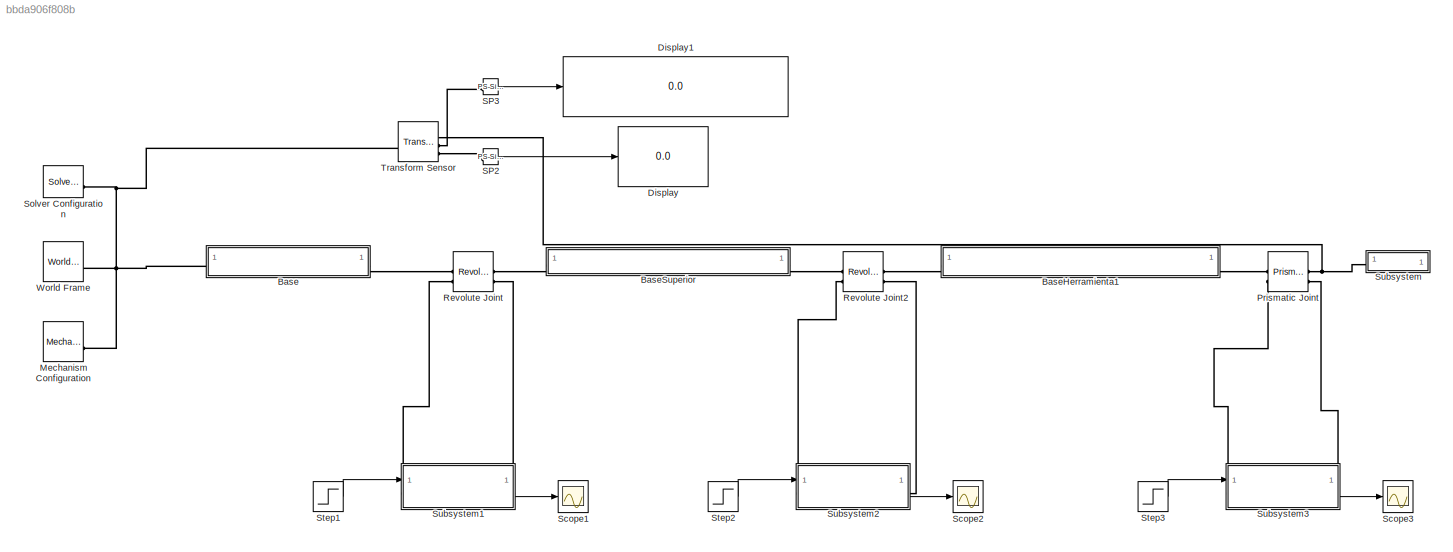
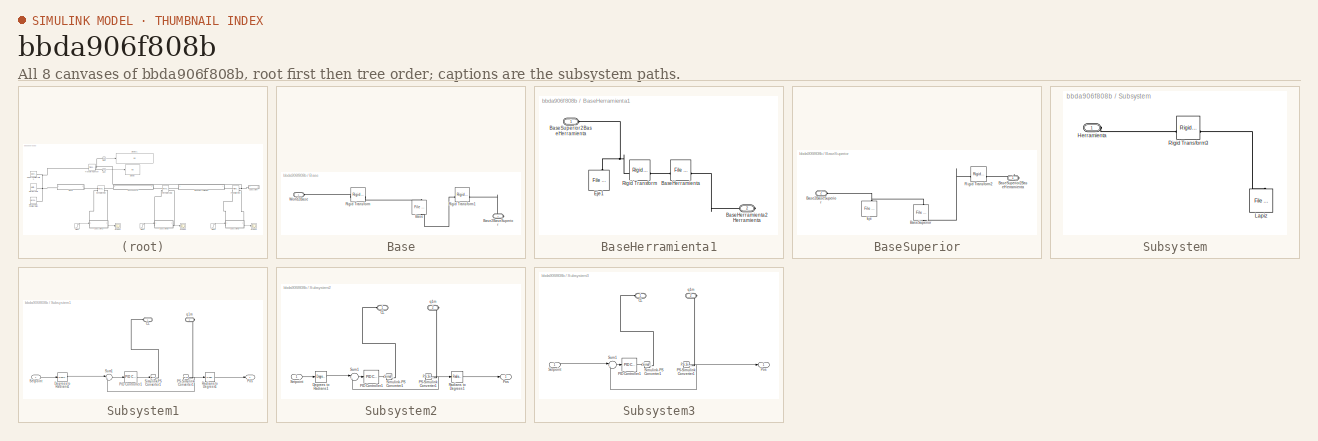
[diagram: thumbnail index - all 8 canvases of the model, root first then tree order]
MODEL slx_bbda906f808b
KIND model
CONFIG AbsTol = auto
CONFIG EnableMultiTasking = off
CONFIG FixedStep = auto
CONFIG MaxStep = auto
CONFIG MinStep = auto
CONFIG RelTol = 1e-3
CONFIG SampleTimeConstraint = Unconstrained
CONFIG SolverName = VariableStepAuto
CONFIG StartTime = 0.0
CONFIG StopTime = 15
BLOCK [SubSystem] Base
BLOCK [Reference] Base/Base  REF=sm_lib/Body Elements/File Solid
  NameLocation = left
  SourceBlock = sm_lib/Body Elements/File Solid
  SourceType = File Solid
BLOCK [PMIOPort] Base/Base2BaseSuperior
  Port = 2
  Side = Right
BLOCK [Reference] Base/Rigid Transform  REF=sm_lib/Frames and
Transforms/Rigid
Transform
  SourceBlock = sm_lib/Frames and\nTransforms/Rigid\nTransform
  SourceType = Rigid\nTransform
BLOCK [Reference] Base/Rigid Transform1  REF=sm_lib/Frames and
Transforms/Rigid
Transform
  SourceBlock = sm_lib/Frames and\nTransforms/Rigid\nTransform
  SourceType = Rigid\nTransform
BLOCK [PMIOPort] Base/World2Base
  Side = Left
BLOCK [SubSystem] BaseHerramienta1
BLOCK [Reference] BaseHerramienta1/BaseHerramienta  REF=sm_lib/Body Elements/File Solid
  SourceBlock = sm_lib/Body Elements/File Solid
  SourceType = File Solid
BLOCK [PMIOPort] BaseHerramienta1/BaseHerramienta2Herramienta
  Port = 2
  Side = Right
BLOCK [PMIOPort] BaseHerramienta1/BaseSuperior2BaseHerramienta
  Side = Left
BLOCK [Reference] BaseHerramienta1/Eje1  REF=sm_lib/Body Elements/File Solid
  NameLocation = left
  SourceBlock = sm_lib/Body Elements/File Solid
  SourceType = File Solid
BLOCK [Reference] BaseHerramienta1/Rigid Transform  REF=sm_lib/Frames and
Transforms/Rigid
Transform
  SourceBlock = sm_lib/Frames and\nTransforms/Rigid\nTransform
  SourceType = Rigid\nTransform
BLOCK [SubSystem] BaseSuperior
BLOCK [PMIOPort] BaseSuperior/Base2BaseSuperior
  Port = 2
  Side = Left
BLOCK [Reference] BaseSuperior/BaseSuperior  REF=sm_lib/Body Elements/File Solid
  NameLocation = left
  SourceBlock = sm_lib/Body Elements/File Solid
  SourceType = File Solid
BLOCK [PMIOPort] BaseSuperior/BaseSuperior2BaseHerramienta
  Side = Right
BLOCK [Reference] BaseSuperior/Eje  REF=sm_lib/Body Elements/File Solid
  NameLocation = left
  SourceBlock = sm_lib/Body Elements/File Solid
  SourceType = File Solid
BLOCK [Reference] BaseSuperior/Rigid Transform2  REF=sm_lib/Frames and
Transforms/Rigid
Transform
  SourceBlock = sm_lib/Frames and\nTransforms/Rigid\nTransform
  SourceType = Rigid\nTransform
BLOCK [Display] Display
  Decimation = 1
BLOCK [Display] Display1
  Decimation = 1
BLOCK [Reference] Mechanism Configuration  REF=sm_lib/Utilities/Mechanism
Configuration
  SourceBlock = sm_lib/Utilities/Mechanism\nConfiguration
  SourceType = Mechanism\nConfiguration
BLOCK [Reference] Prismatic Joint  REF=sm_lib/Joints/Prismatic
Joint
  SourceBlock = sm_lib/Joints/Prismatic\nJoint
  SourceType = Prismatic\nJoint
BLOCK [Reference] Revolute Joint  REF=sm_lib/Joints/Revolute Joint
  SourceBlock = sm_lib/Joints/Revolute Joint
  SourceType = Revolute Joint
BLOCK [Reference] Revolute Joint2  REF=sm_lib/Joints/Revolute Joint
  SourceBlock = sm_lib/Joints/Revolute Joint
  SourceType = Revolute Joint
BLOCK [Reference] SP2  REF=nesl_utility/PS-Simulink
Converter
  SourceBlock = nesl_utility/PS-Simulink\nConverter
  SourceType = PS-Simulink\nConverter
BLOCK [Reference] SP3  REF=nesl_utility/PS-Simulink
Converter
  SourceBlock = nesl_utility/PS-Simulink\nConverter
  SourceType = PS-Simulink\nConverter
BLOCK [Scope] Scope1
  ActiveDisplayYMaximum = 1
  ActiveDisplayYMinimum = -1
  DataLoggingVariableName = ScopeData1
  Floating = off
  GraphicalSettings = {"Style":{"BackgroundColor":[0.12941176470588237,0.12941176470588237,0.12941176470588237],"AxesColor":[0.07058823529411765,0.07058823529411765,0.07058823529411765],"LabelsColor":[0.8509803921568627,0.8509803921568627,0.8509803921568627],"PreserveColors":false,"Visible":[true],"LineStyle":["-"],"LineWidth":[1.5],"BarWidth":[0.9],"LineColor":["auto"],"LineFaceAlpha":[1],"LineEdgeAlpha":[1],"Marker":...<+2000ch>
  MultipleDisplayCache = [{"MaxYLimMag":1,"MaxYLimReal":1,"MinYLimMag":0,"MinYLimReal":-1,"PlotAsMagnitudePhase":false,"ShowGrid":true,"ShowLegend":false,"Title":"%<SignalLabel>","YLabel":""}]
  NumInputPorts = 1
  ScopeFrameLocation = window
  WasSavedAsWebScope = on
  WindowPosition = [1.000000,41.000000,1920.000000,963.000000,]
BLOCK [Scope] Scope2
  ActiveDisplayYMaximum = 1
  ActiveDisplayYMinimum = -1
  Floating = off
  GraphicalSettings = {"Style":{"BackgroundColor":[0.12941176470588237,0.12941176470588237,0.12941176470588237],"AxesColor":[0.07058823529411765,0.07058823529411765,0.07058823529411765],"LabelsColor":[0.8509803921568627,0.8509803921568627,0.8509803921568627],"PreserveColors":false,"Visible":[true],"LineStyle":["-"],"LineWidth":[1.5],"BarWidth":[0.9],"LineColor":["auto"],"LineFaceAlpha":[1],"LineEdgeAlpha":[1],"Marker":...<+1952ch>
  MultipleDisplayCache = [{"MaxYLimMag":1,"MaxYLimReal":1,"MinYLimMag":0,"MinYLimReal":-1,"PlotAsMagnitudePhase":false,"ShowGrid":true,"ShowLegend":false,"Title":"%<SignalLabel>","YLabel":""}]
  NumInputPorts = 1
  ScopeFrameLocation = window
  WasSavedAsWebScope = on
  WindowPosition = [1.000000,41.000000,1920.000000,963.000000,]
BLOCK [Scope] Scope3
  ActiveDisplayYMaximum = 0.0012538351185240636
  ActiveDisplayYMinimum = -0.011284312648856334
  DataLoggingVariableName = ScopeData2
  Floating = off
  GraphicalSettings = {"Style":{"BackgroundColor":[0.12941176470588237,0.12941176470588237,0.12941176470588237],"AxesColor":[0.07058823529411765,0.07058823529411765,0.07058823529411765],"LabelsColor":[0.8509803921568627,0.8509803921568627,0.8509803921568627],"PreserveColors":false,"Visible":[true],"LineStyle":["-"],"LineWidth":[1.5],"BarWidth":[0.9],"LineColor":["auto"],"LineFaceAlpha":[1],"LineEdgeAlpha":[1],"Marker":...<+2020ch>
  MultipleDisplayCache = [{"MaxYLimMag":0.011284312648856334,"MaxYLimReal":0.0012538351185240636,"MinYLimMag":0,"MinYLimReal":-0.011284312648856334,"PlotAsMagnitudePhase":false,"ShowGrid":true,"ShowLegend":false,"Title":"%<SignalLabel>","YLabel":""}]
  NumInputPorts = 1
  ScopeFrameLocation = window
  WasSavedAsWebScope = on
  WindowPosition = [1.000000,41.000000,1920.000000,963.000000,]
BLOCK [Reference] Solver Configuration  REF=nesl_utility/Solver
Configuration
  SourceBlock = nesl_utility/Solver\nConfiguration
  SourceType = Solver\nConfiguration
BLOCK [Step] Step1
  After = -45
  Before = 45
  SampleTime = 0
  Time = 5
BLOCK [Step] Step2
  After = -45
  Before = 45
  SampleTime = 0
  Time = 2
BLOCK [Step] Step3
  After = 0
  SampleTime = 0
  Time = 0
BLOCK [SubSystem] Subsystem
BLOCK [PMIOPort] Subsystem/Herramienta
  Side = Left
BLOCK [Reference] Subsystem/Lapiz  REF=sm_lib/Body Elements/File Solid
  NameLocation = left
  SourceBlock = sm_lib/Body Elements/File Solid
  SourceType = File Solid
BLOCK [Reference] Subsystem/Rigid Transform3  REF=sm_lib/Frames and
Transforms/Rigid
Transform
  SourceBlock = sm_lib/Frames and\nTransforms/Rigid\nTransform
  SourceType = Rigid\nTransform
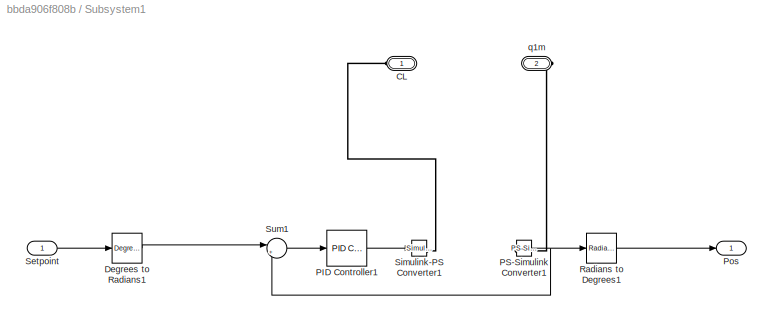
BLOCK [SubSystem] Subsystem1
  PortSchema = {"entries":[{"content":{"sides":[{"content":{"connectorIds":["LConn1","In1"]},"type":"ConnectorPlacement.EquallySpacedRectSide","uuid":"4507d464-e655-44f8-a407-e559c6a30a16"},{"content":{"connectorIds":["RConn1","Out1"],"side":"RIGHT"},"type":"ConnectorPlacement.EquallySpacedRectSide","uuid":"09fc8619-c350-49b7-bcee-d29b5801fdd5"},{"content":{"side":"TOP"},"type":"ConnectorPlacement.EquallySpacedR...<+240ch>  <repeated x3 — deduplicated; at blocks: Subsystem1, Subsystem2, Subsystem3>
BLOCK [PMIOPort] Subsystem1/CL
  Side = Left
BLOCK [Reference] Subsystem1/Degrees to Radians1  REF=simulink_extras/Transformations/Degrees to
Radians
  SourceBlock = simulink_extras/Transformations/Degrees to\nRadians
  SourceType = DegreesToRadians
BLOCK [Reference] Subsystem1/PID Controller1  REF=slpidlib/PID Controller
  LibrarySourceBlock = simulink/Continuous/PID Controller
  SourceBlock = slpidlib/PID Controller
  SourceType = PID 1dof
BLOCK [Reference] Subsystem1/PS-Simulink Converter1  REF=nesl_utility/PS-Simulink
Converter
  SourceBlock = nesl_utility/PS-Simulink\nConverter
  SourceType = PS-Simulink\nConverter
BLOCK [Outport] Subsystem1/Pos
BLOCK [Reference] Subsystem1/Radians to Degrees1  REF=simulink_extras/Transformations/Radians
to Degrees
  SourceBlock = simulink_extras/Transformations/Radians\nto Degrees
  SourceType = RadiansToDegrees
BLOCK [Inport] Subsystem1/Setpoint
BLOCK [Reference] Subsystem1/Simulink-PS Converter1  REF=nesl_utility/Simulink-PS
Converter
  SourceBlock = nesl_utility/Simulink-PS\nConverter
  SourceType = Simulink-PS\nConverter
BLOCK [Sum] Subsystem1/Sum1
  Inputs = |+-
BLOCK [PMIOPort] Subsystem1/q1m
  Port = 2
  Side = Right
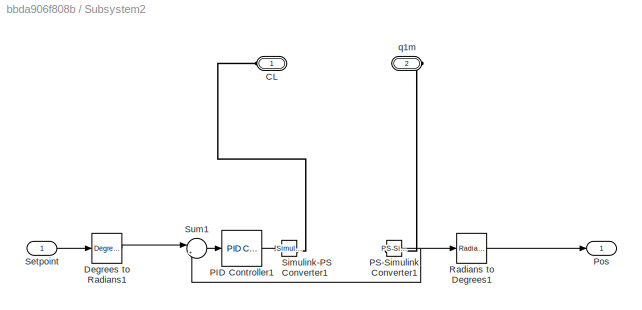
BLOCK [SubSystem] Subsystem2
BLOCK [PMIOPort] Subsystem2/CL
  Side = Left
BLOCK [Reference] Subsystem2/Degrees to Radians1  REF=simulink_extras/Transformations/Degrees to
Radians
  SourceBlock = simulink_extras/Transformations/Degrees to\nRadians
  SourceType = DegreesToRadians
BLOCK [Reference] Subsystem2/PID Controller1  REF=slpidlib/PID Controller
  LibrarySourceBlock = simulink/Continuous/PID Controller
  SourceBlock = slpidlib/PID Controller
  SourceType = PID 1dof
BLOCK [Reference] Subsystem2/PS-Simulink Converter1  REF=nesl_utility/PS-Simulink
Converter
  SourceBlock = nesl_utility/PS-Simulink\nConverter
  SourceType = PS-Simulink\nConverter
BLOCK [Outport] Subsystem2/Pos
BLOCK [Reference] Subsystem2/Radians to Degrees1  REF=simulink_extras/Transformations/Radians
to Degrees
  SourceBlock = simulink_extras/Transformations/Radians\nto Degrees
  SourceType = RadiansToDegrees
BLOCK [Inport] Subsystem2/Setpoint
BLOCK [Reference] Subsystem2/Simulink-PS Converter1  REF=nesl_utility/Simulink-PS
Converter
  SourceBlock = nesl_utility/Simulink-PS\nConverter
  SourceType = Simulink-PS\nConverter
BLOCK [Sum] Subsystem2/Sum1
  Inputs = |+-
BLOCK [PMIOPort] Subsystem2/q1m
  Port = 2
  Side = Right
BLOCK [SubSystem] Subsystem3
BLOCK [PMIOPort] Subsystem3/CL
  Side = Left
BLOCK [Reference] Subsystem3/PID Controller1  REF=slpidlib/PID Controller
  LibrarySourceBlock = simulink/Continuous/PID Controller
  SourceBlock = slpidlib/PID Controller
  SourceType = PID 1dof
BLOCK [Reference] Subsystem3/PS-Simulink Converter1  REF=nesl_utility/PS-Simulink
Converter
  SourceBlock = nesl_utility/PS-Simulink\nConverter
  SourceType = PS-Simulink\nConverter
BLOCK [Outport] Subsystem3/Pos
BLOCK [Inport] Subsystem3/Setpoint
BLOCK [Reference] Subsystem3/Simulink-PS Converter1  REF=nesl_utility/Simulink-PS
Converter
  SourceBlock = nesl_utility/Simulink-PS\nConverter
  SourceType = Simulink-PS\nConverter
BLOCK [Sum] Subsystem3/Sum1
  Inputs = |+-
BLOCK [PMIOPort] Subsystem3/q1m
  Port = 2
  Side = Right
BLOCK [Reference] Transform Sensor  REF=sm_lib/Frames and
Transforms/Transform
Sensor
  SourceBlock = sm_lib/Frames and\nTransforms/Transform\nSensor
  SourceType = Transform\nSensor
BLOCK [Reference] World Frame  REF=sm_lib/Frames and
Transforms/World Frame
  SourceBlock = sm_lib/Frames and\nTransforms/World Frame
  SourceType = World Frame
LINE SP2:1 -> Display:1
LINE SP3:1 -> Display1:1
LINE Step1:1 -> Subsystem1:1
LINE Step2:1 -> Subsystem2:1
LINE Step3:1 -> Subsystem3:1
LINE Subsystem1/Degrees to Radians1:1 -> Subsystem1/Sum1:1
LINE Subsystem1/PID Controller1:1 -> Subsystem1/Simulink-PS Converter1:1
NET Subsystem1/PS-Simulink Converter1:1 -> Subsystem1/Radians to Degrees1:1, Subsystem1/Sum1:2
LINE Subsystem1/Radians to Degrees1:1 -> Subsystem1/Pos:1
LINE Subsystem1/Setpoint:1 -> Subsystem1/Degrees to Radians1:1
LINE Subsystem1/Sum1:1 -> Subsystem1/PID Controller1:1
LINE Subsystem1:1 -> Scope1:1
LINE Subsystem2/Degrees to Radians1:1 -> Subsystem2/Sum1:1
LINE Subsystem2/PID Controller1:1 -> Subsystem2/Simulink-PS Converter1:1
NET Subsystem2/PS-Simulink Converter1:1 -> Subsystem2/Radians to Degrees1:1, Subsystem2/Sum1:2
LINE Subsystem2/Radians to Degrees1:1 -> Subsystem2/Pos:1
LINE Subsystem2/Setpoint:1 -> Subsystem2/Degrees to Radians1:1
LINE Subsystem2/Sum1:1 -> Subsystem2/PID Controller1:1
LINE Subsystem2:1 -> Scope2:1
LINE Subsystem3/PID Controller1:1 -> Subsystem3/Simulink-PS Converter1:1
NET Subsystem3/PS-Simulink Converter1:1 -> Subsystem3/Pos:1, Subsystem3/Sum1:2
LINE Subsystem3/Setpoint:1 -> Subsystem3/Sum1:1
LINE Subsystem3/Sum1:1 -> Subsystem3/PID Controller1:1
LINE Subsystem3:1 -> Scope3:1
PLINE Base/Base2BaseSuperior:RConn1 -- Base/Rigid Transform1:RConn1
PLINE Base/Base:LConn1 -- Base/Rigid Transform:RConn1
PLINE Base/Base:RConn1 -- Base/Rigid Transform1:LConn1
PLINE Base/Rigid Transform:LConn1 -- Base/World2Base:RConn1
PNET net1: Base:LConn1 -- Mechanism Configuration:RConn1 -- Solver Configuration:RConn1 -- Transform Sensor:LConn1 -- World Frame:RConn1
PLINE Base:RConn1 -- Revolute Joint:LConn1
PLINE BaseHerramienta1/BaseHerramienta2Herramienta:RConn1 -- BaseHerramienta1/BaseHerramienta:RConn1
PLINE BaseHerramienta1/BaseHerramienta:LConn1 -- BaseHerramienta1/Rigid Transform:RConn1
PNET net2: BaseHerramienta1/BaseSuperior2BaseHerramienta:RConn1 -- BaseHerramienta1/Eje1:LConn1 -- BaseHerramienta1/Rigid Transform:LConn1
PLINE BaseHerramienta1:LConn1 -- Revolute Joint2:RConn1
PLINE BaseHerramienta1:RConn1 -- Prismatic Joint:LConn1
PNET net3: BaseSuperior/Base2BaseSuperior:RConn1 -- BaseSuperior/BaseSuperior:LConn1 -- BaseSuperior/Eje:LConn1
PLINE BaseSuperior/BaseSuperior2BaseHerramienta:RConn1 -- BaseSuperior/Rigid Transform2:RConn1
PLINE BaseSuperior/BaseSuperior:RConn1 -- BaseSuperior/Rigid Transform2:LConn1
PLINE BaseSuperior:LConn1 -- Revolute Joint:RConn1
PLINE BaseSuperior:RConn1 -- Revolute Joint2:LConn1
PLINE Prismatic Joint:LConn2 -- Subsystem3:LConn1
PNET net4: Prismatic Joint:RConn1 -- Subsystem:LConn1 -- Transform Sensor:RConn1
PLINE Prismatic Joint:RConn2 -- Subsystem3:RConn1
PLINE Revolute Joint2:LConn2 -- Subsystem2:LConn1
PLINE Revolute Joint2:RConn2 -- Subsystem2:RConn1
PLINE Revolute Joint:LConn2 -- Subsystem1:LConn1
PLINE Revolute Joint:RConn2 -- Subsystem1:RConn1
PLINE SP2:LConn1 -- Transform Sensor:RConn3
PLINE SP3:LConn1 -- Transform Sensor:RConn2
PLINE Subsystem/Herramienta:RConn1 -- Subsystem/Rigid Transform3:LConn1
PLINE Subsystem/Lapiz:LConn1 -- Subsystem/Rigid Transform3:RConn1
PLINE Subsystem1/CL:RConn1 -- Subsystem1/Simulink-PS Converter1:RConn1
PLINE Subsystem1/PS-Simulink Converter1:LConn1 -- Subsystem1/q1m:RConn1
PLINE Subsystem2/CL:RConn1 -- Subsystem2/Simulink-PS Converter1:RConn1
PLINE Subsystem2/PS-Simulink Converter1:LConn1 -- Subsystem2/q1m:RConn1
PLINE Subsystem3/CL:RConn1 -- Subsystem3/Simulink-PS Converter1:RConn1
PLINE Subsystem3/PS-Simulink Converter1:LConn1 -- Subsystem3/q1m:RConn1
note: NET lines group one-source signal fan-out (src -> all destinations, sorted); 1:1 wires keep LINE; PNET lines group multi-terminal physical nets as a canonical sorted terminal list (undirected conserving connections); 2-terminal nets keep the pairwise PLINE form
